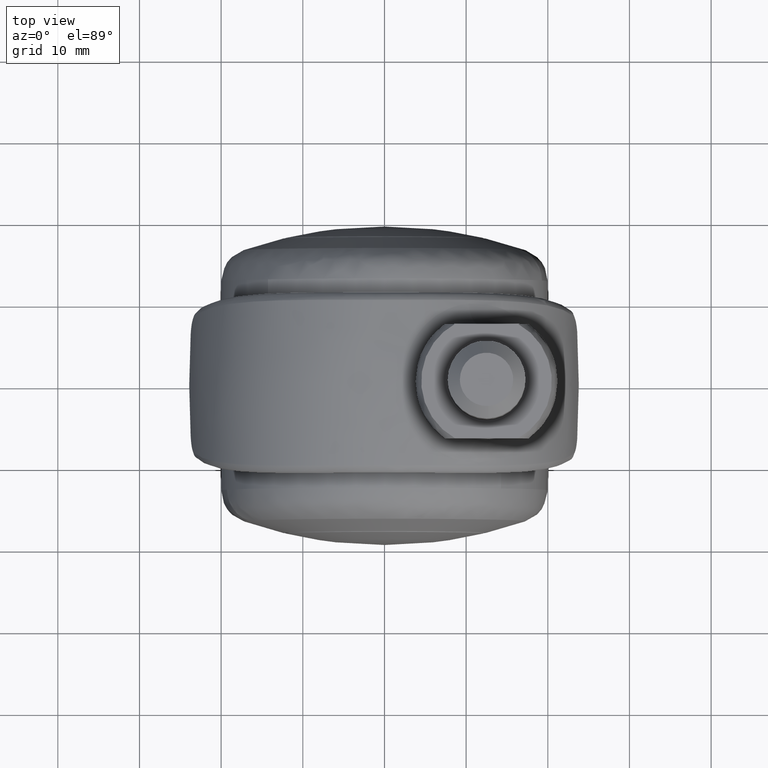
[diagram: clean part render]
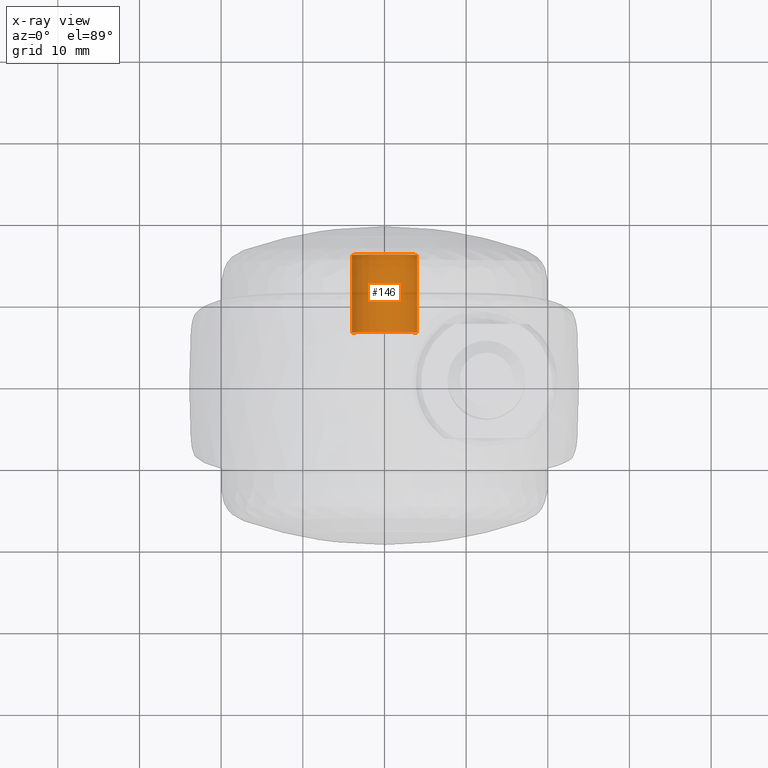
[diagram: x-ray — body ghosted, one internal face saturated and labeled with its STEP entity id]
A machine part, top view, then the same camera in x-ray: the body is ghosted and one INTERNAL B-rep face — a face not visible from any outside direction — is saturated and labeled: STEP entity #146.
In plain terms, the highlighted face is a freeform B-spline surface patch.
Its self-contained STEP definition (entity closure, byte-faithful):
#44=CARTESIAN_POINT('',(3.972038105454666,-6.262499999999999,-0.472136938627034));
#45=CARTESIAN_POINT('',(3.985550461794422,-6.262499999999998,-0.358458914551911));
#46=CARTESIAN_POINT('',(3.992539193687467,-6.262499999999999,-0.244194158139428));
#47=CARTESIAN_POINT('',(4.236733351826894,-6.262499999999999,3.748345035548039));
#48=CARTESIAN_POINT('',(0.244194158139428,-6.262499999999999,3.992539193687467));
#49=CARTESIAN_POINT('',(-3.748345035548039,-6.262499999999999,4.236733351826894));
#50=CARTESIAN_POINT('',(-3.992539193687467,-6.262499999999999,0.244194158139428));
#51=CARTESIAN_POINT('',(3.972038105454666,-16.243437499999999,-0.472136938627034));
#52=CARTESIAN_POINT('',(3.985550461794422,-16.243437499999995,-0.358458914551911));
#53=CARTESIAN_POINT('',(3.992539193687467,-16.243437499999999,-0.244194158139428));
#54=CARTESIAN_POINT('',(4.236733351826894,-16.243437499999999,3.748345035548039));
#55=CARTESIAN_POINT('',(0.244194158139428,-16.243437499999999,3.992539193687467));
#56=CARTESIAN_POINT('',(-3.748345035548039,-16.243437499999999,4.236733351826894));
#57=CARTESIAN_POINT('',(-3.992539193687467,-16.243437499999999,0.244194158139428));
#65=(BOUNDED_SURFACE()B_SPLINE_SURFACE(2,1,((#44,#51),(#45,#52),(#46,#53),(#47,#54),(#48,#55),(#49,#56),(#50,#57)),.UNSPECIFIED.,.F.,.F.,.U.)B_SPLINE_SURFACE_WITH_KNOTS((3,2,2,3),(2,2),(0.0,0.265096679918781,6.892513677888299,13.519930675857820),(0.0,9.980937500000003),.UNSPECIFIED.)GEOMETRIC_REPRESENTATION_ITEM()RATIONAL_B_SPLINE_SURFACE(((0.977505800795127,0.977505800795127),(0.988284271247462,0.988284271247462),(1.0,1.0),(0.707106781186548,0.707106781186548),(1.0,1.0),(0.707106781186548,0.707106781186548),(1.0,1.0)))REPRESENTATION_ITEM('')SURFACE());
#66=CARTESIAN_POINT('',(3.972038105446977,-16.0,-0.472136938691718));
#67=VERTEX_POINT('',#66);
#68=CARTESIAN_POINT('',(0.0,-16.0,4.0));
#69=VERTEX_POINT('',#68);
#70=CARTESIAN_POINT('',(3.972038105446976,-16.000000000000004,-0.472136938691718));
#71=CARTESIAN_POINT('',(4.0,-16.000000000000004,-0.236896478673009));
#72=CARTESIAN_POINT('',(4.0,-16.0,0.0));
#73=CARTESIAN_POINT('',(4.000000000000000,-15.999999999999998,4.000000000000000));
#74=CARTESIAN_POINT('',(0.0,-16.0,4.0));
#82=(BOUNDED_CURVE()B_SPLINE_CURVE(2,(#70,#71,#72,#73,#74),.UNSPECIFIED.,.F.,.U.)B_SPLINE_CURVE_WITH_KNOTS((3,2,3),(0.729562473510140,0.750000000000000,1.0),.UNSPECIFIED.)CURVE()GEOMETRIC_REPRESENTATION_ITEM()RATIONAL_B_SPLINE_CURVE((0.956026754177097,0.976055948327199,1.0,0.707106781186548,1.0))REPRESENTATION_ITEM(''));
#83=EDGE_CURVE('',#67,#69,#82,.T.);
#84=ORIENTED_EDGE('',*,*,#83,.T.);
#85=CARTESIAN_POINT('',(-3.992539427911077,-15.999999999999970,0.244190328556970));
#86=VERTEX_POINT('',#85);
#87=CARTESIAN_POINT('',(0.0,-16.0,4.0));
#88=CARTESIAN_POINT('',(-3.762827883612163,-15.999999999999998,4.000000000000001));
#89=CARTESIAN_POINT('',(-3.992539427911077,-15.999999999999973,0.244190328556970));
#97=(BOUNDED_CURVE()B_SPLINE_CURVE(2,(#87,#88,#89),.UNSPECIFIED.,.F.,.U.)B_SPLINE_CURVE_WITH_KNOTS((3,3),(0.0,0.239333127746227),.UNSPECIFIED.)CURVE()GEOMETRIC_REPRESENTATION_ITEM()RATIONAL_B_SPLINE_CURVE((1.0,0.719603799382865,0.976072396380590))REPRESENTATION_ITEM(''));
#98=EDGE_CURVE('',#69,#86,#97,.T.);
#99=ORIENTED_EDGE('',*,*,#98,.T.);
#100=CARTESIAN_POINT('',(-3.992539425028732,-6.500000000000000,0.244190375684373));
#101=VERTEX_POINT('',#100);
#102=CARTESIAN_POINT('',(-3.992539425028732,-6.500000000000000,0.244190375684373));
#103=CARTESIAN_POINT('',(-3.992539427911077,-15.999999999999970,0.244190328556970));
#104=QUASI_UNIFORM_CURVE('',1,(#102,#103),.UNSPECIFIED.,.F.,.U.);
#105=EDGE_CURVE('',#101,#86,#104,.T.);
#106=ORIENTED_EDGE('',*,*,#105,.F.);
#107=CARTESIAN_POINT('',(0.0,-6.500000000000000,4.0));
#108=VERTEX_POINT('',#107);
#109=CARTESIAN_POINT('',(0.0,-6.500000000000000,4.0));
#110=CARTESIAN_POINT('',(-3.762827839113252,-6.500000000000001,4.000000000000000));
#111=CARTESIAN_POINT('',(-3.992539425028732,-6.500000000000000,0.244190375684373));
#119=(BOUNDED_CURVE()B_SPLINE_CURVE(2,(#109,#110,#111),.UNSPECIFIED.,.F.,.U.)B_SPLINE_CURVE_WITH_KNOTS((3,3),(0.500000000000000,0.739333125709507),.UNSPECIFIED.)CURVE()GEOMETRIC_REPRESENTATION_ITEM()RATIONAL_B_SPLINE_CURVE((1.0,0.719603801769031,0.976072392015506))REPRESENTATION_ITEM(''));
#120=EDGE_CURVE('',#108,#101,#119,.T.);
#121=ORIENTED_EDGE('',*,*,#120,.F.);
#122=CARTESIAN_POINT('',(3.972038105446977,-6.500000000000000,-0.472136938691719));
#123=VERTEX_POINT('',#122);
#124=CARTESIAN_POINT('',(3.972038105446976,-6.500000000000001,-0.472136938691719));
#125=CARTESIAN_POINT('',(4.0,-6.500000000000001,-0.236896478673009));
#126=CARTESIAN_POINT('',(4.0,-6.500000000000000,0.0));
#127=CARTESIAN_POINT('',(4.000000000000000,-6.500000000000001,4.000000000000000));
#128=CARTESIAN_POINT('',(0.0,-6.500000000000000,4.0));
#136=(BOUNDED_CURVE()B_SPLINE_CURVE(2,(#124,#125,#126,#127,#128),.UNSPECIFIED.,.F.,.U.)B_SPLINE_CURVE_WITH_KNOTS((3,2,3),(0.229562473510140,0.250000000000000,0.500000000000000),.UNSPECIFIED.)CURVE()GEOMETRIC_REPRESENTATION_ITEM()RATIONAL_B_SPLINE_CURVE((0.956026754177097,0.976055948327199,1.0,0.707106781186548,1.0))REPRESENTATION_ITEM(''));
#137=EDGE_CURVE('',#123,#108,#136,.T.);
#138=ORIENTED_EDGE('',*,*,#137,.F.);
#139=CARTESIAN_POINT('',(3.972038105446977,-6.500000000000000,-0.472136938691719));
#140=CARTESIAN_POINT('',(3.972038105446977,-16.0,-0.472136938691718));
#141=QUASI_UNIFORM_CURVE('',1,(#139,#140),.UNSPECIFIED.,.F.,.U.);
#142=EDGE_CURVE('',#123,#67,#141,.T.);
#143=ORIENTED_EDGE('',*,*,#142,.T.);
#144=EDGE_LOOP('',(#84,#99,#106,#121,#138,#143));
#145=FACE_OUTER_BOUND('',#144,.T.);
#146=ADVANCED_FACE('',(#145),#65,.F.);